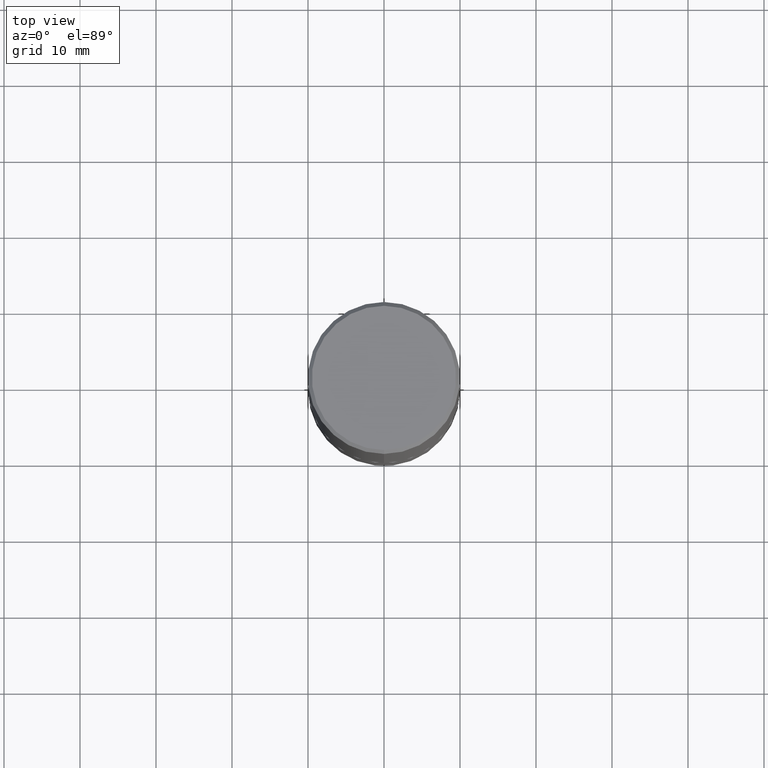
[diagram: clean part render]
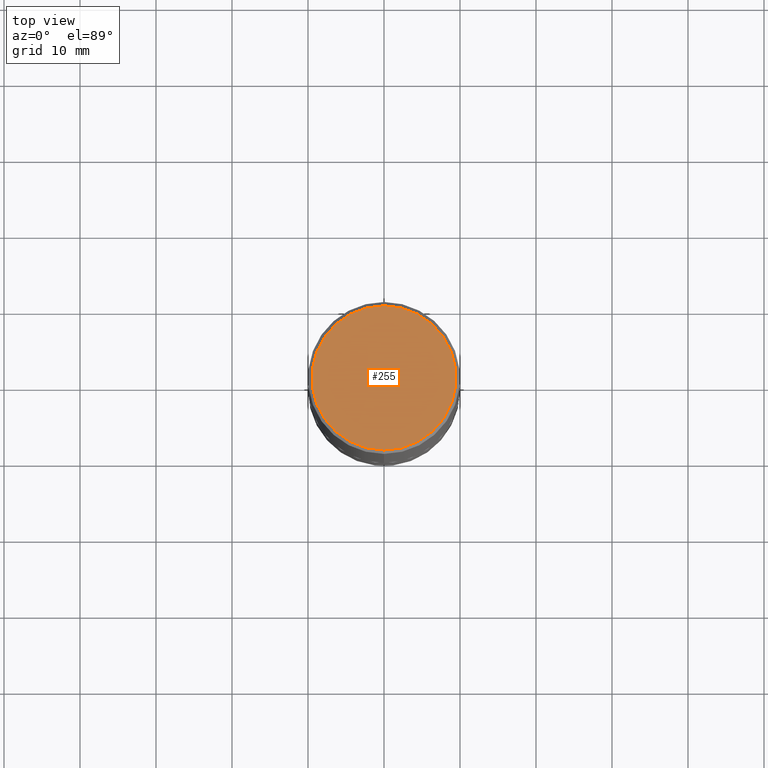
[diagram: same view with one face highlighted and labeled with its STEP entity id]
A machine part, top view. The second image highlights one B-rep face of the part: STEP entity #255.
In plain terms, the highlighted planar face has unit normal (0, -0, -1).
Its self-contained STEP definition (entity closure, byte-faithful):
#50 = ORIENTED_EDGE ( 'NONE', *, *, #76, .T. ) ;
#51 = EDGE_LOOP ( 'NONE', ( #129, #50 ) ) ;
#73 = DIRECTION ( 'NONE',  ( -6.982962677686265133E-15, -1.000000000000000000, 3.490882795731700761E-15 ) ) ;
#76 = EDGE_CURVE ( 'NONE', #293, #289, #168, .T. ) ;
#82 = CARTESIAN_POINT ( 'NONE',  ( -2.604603702216768831E-45, 3.717410952095981394E-31, 1.064891366917633652E-16 ) ) ;
#128 = DIRECTION ( 'NONE',  ( -2.445886766605957047E-29, 3.490882795731700761E-15, 1.000000000000000000 ) ) ;
#129 = ORIENTED_EDGE ( 'NONE', *, *, #374, .T. ) ;
#150 = DIRECTION ( 'NONE',  ( 6.982962677686265922E-15, 1.000000000000000000, -3.490882795731700761E-15 ) ) ;
#153 = CARTESIAN_POINT ( 'NONE',  ( 2.679362779428219918E-15, 0.3736999999999999211, -1.198053764073172968E-15 ) ) ;
#156 = AXIS2_PLACEMENT_3D ( 'NONE', #358, #128, #73 ) ;
#158 = DIRECTION ( 'NONE',  ( -6.982962677686265133E-15, -1.000000000000000000, 3.490882795731700761E-15 ) ) ;
#167 = DIRECTION ( 'NONE',  ( -2.445886766605957047E-29, 3.490882795731700761E-15, 1.000000000000000000 ) ) ;
#168 = CIRCLE ( 'NONE', #341, 0.3736999999999999211 ) ;
#215 = AXIS2_PLACEMENT_3D ( 'NONE', #349, #314, #150 ) ;
#219 = PLANE ( 'NONE',  #215 ) ;
#227 = CIRCLE ( 'NONE', #156, 0.3736999999999999211 ) ;
#255 = ADVANCED_FACE ( 'NONE', ( #412 ), #219, .F. ) ;
#289 = VERTEX_POINT ( 'NONE', #153 ) ;
#291 = CARTESIAN_POINT ( 'NONE',  ( -2.632373081744935921E-15, -0.3736999999999999211, 1.411032037456699427E-15 ) ) ;
#293 = VERTEX_POINT ( 'NONE', #291 ) ;
#314 = DIRECTION ( 'NONE',  ( 2.445886766605956767E-29, -3.490882795731700761E-15, -1.000000000000000000 ) ) ;
#341 = AXIS2_PLACEMENT_3D ( 'NONE', #82, #167, #158 ) ;
#349 = CARTESIAN_POINT ( 'NONE',  ( 2.609533152651356620E-15, 0.3736999999999999211, -1.251298332419054533E-15 ) ) ;
#358 = CARTESIAN_POINT ( 'NONE',  ( -2.604603702216768831E-45, 3.717410952095981394E-31, 1.064891366917633652E-16 ) ) ;
#374 = EDGE_CURVE ( 'NONE', #289, #293, #227, .T. ) ;
#412 = FACE_OUTER_BOUND ( 'NONE', #51, .T. ) ;